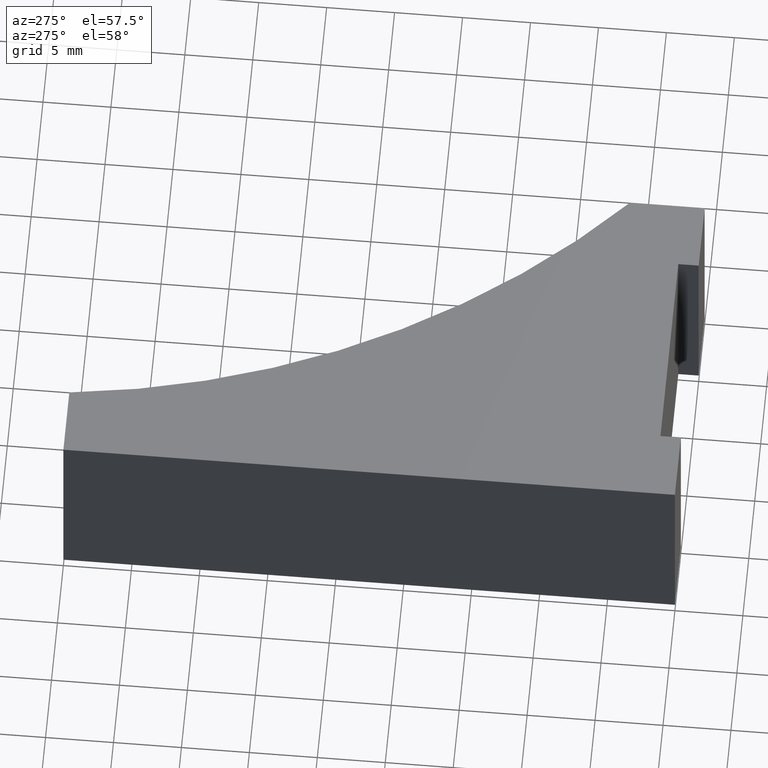
[diagram: clean part render]
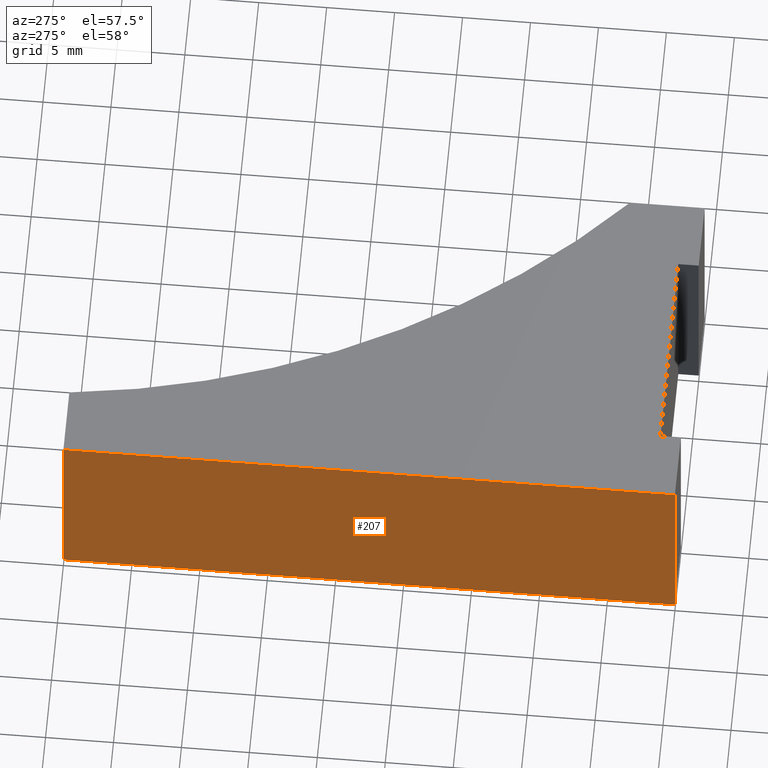
[diagram: same view with one face highlighted and labeled with its STEP entity id]
A machine part, auxiliary view. The second image highlights one B-rep face of the part: STEP entity #207.
In plain terms, the highlighted planar face has unit normal (-1, 0, 0).
Its self-contained STEP definition (entity closure, byte-faithful):
#26=FACE_OUTER_BOUND('',#37,.T.);
#37=EDGE_LOOP('',(#167,#168,#169,#170));
#41=LINE('',#305,#66);
#62=LINE('',#350,#87);
#63=LINE('',#352,#88);
#64=LINE('',#353,#89);
#66=VECTOR('',#251,10.);
#87=VECTOR('',#290,10.);
#88=VECTOR('',#293,10.);
#89=VECTOR('',#294,10.);
#90=VERTEX_POINT('',#301);
#92=VERTEX_POINT('',#304);
#106=VERTEX_POINT('',#346);
#107=VERTEX_POINT('',#348);
#109=EDGE_CURVE('',#90,#92,#41,.T.);
#132=EDGE_CURVE('',#106,#107,#62,.T.);
#133=EDGE_CURVE('',#106,#90,#63,.T.);
#134=EDGE_CURVE('',#92,#107,#64,.T.);
#167=ORIENTED_EDGE('',*,*,#133,.F.);
#168=ORIENTED_EDGE('',*,*,#132,.T.);
#169=ORIENTED_EDGE('',*,*,#134,.F.);
#170=ORIENTED_EDGE('',*,*,#109,.F.);
#196=PLANE('',#243);
#207=ADVANCED_FACE('',(#26),#196,.T.);
#243=AXIS2_PLACEMENT_3D('',#351,#291,#292);
#251=DIRECTION('',(0.,0.,-1.));
#290=DIRECTION('',(0.,0.,-1.));
#291=DIRECTION('center_axis',(-1.,0.,0.));
#292=DIRECTION('ref_axis',(0.,1.,0.));
#293=DIRECTION('',(0.,-1.,0.));
#294=DIRECTION('',(0.,1.,0.));
#301=CARTESIAN_POINT('',(0.,0.,0.));
#304=CARTESIAN_POINT('',(0.,0.,-15.));
#305=CARTESIAN_POINT('',(0.,0.,0.));
#346=CARTESIAN_POINT('',(0.,45.,0.));
#348=CARTESIAN_POINT('',(0.,45.,-15.));
#350=CARTESIAN_POINT('',(0.,45.,0.));
#351=CARTESIAN_POINT('Origin',(0.,0.,0.));
#352=CARTESIAN_POINT('',(0.,45.,0.));
#353=CARTESIAN_POINT('',(0.,45.,-15.));